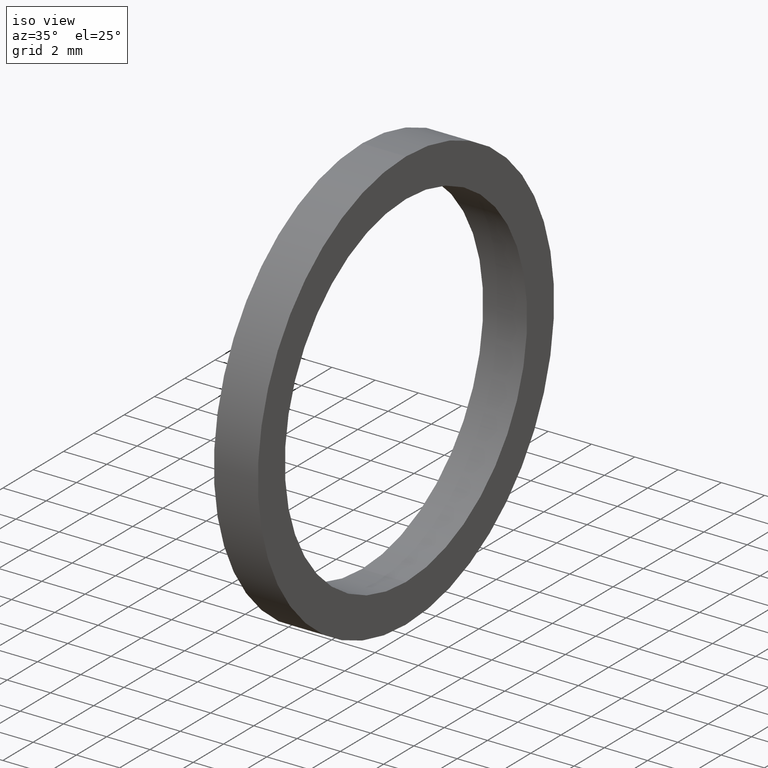
[diagram: clean part render]
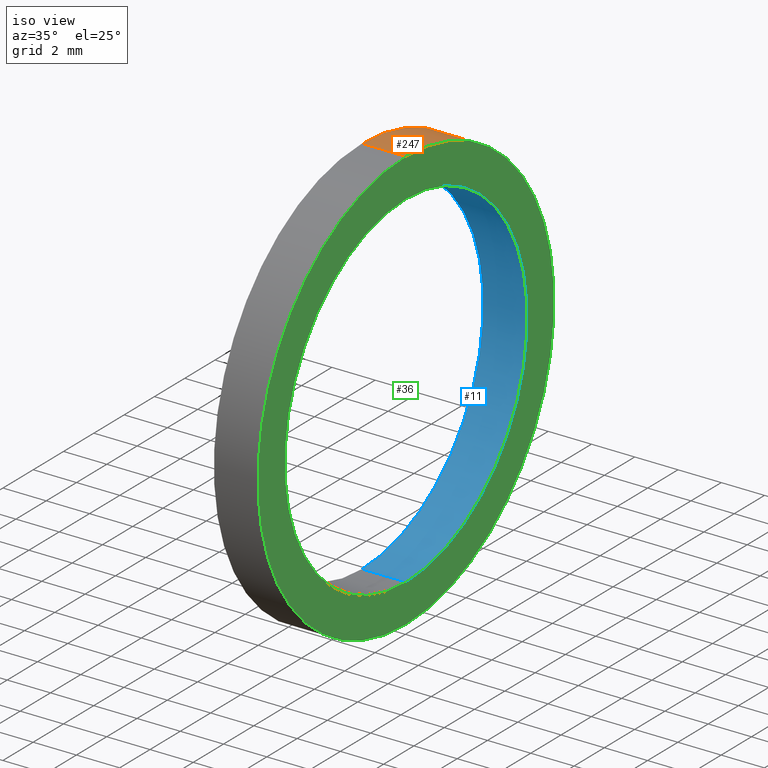
[diagram: same view with three faces highlighted in distinct colors, each labeled with its STEP entity id]
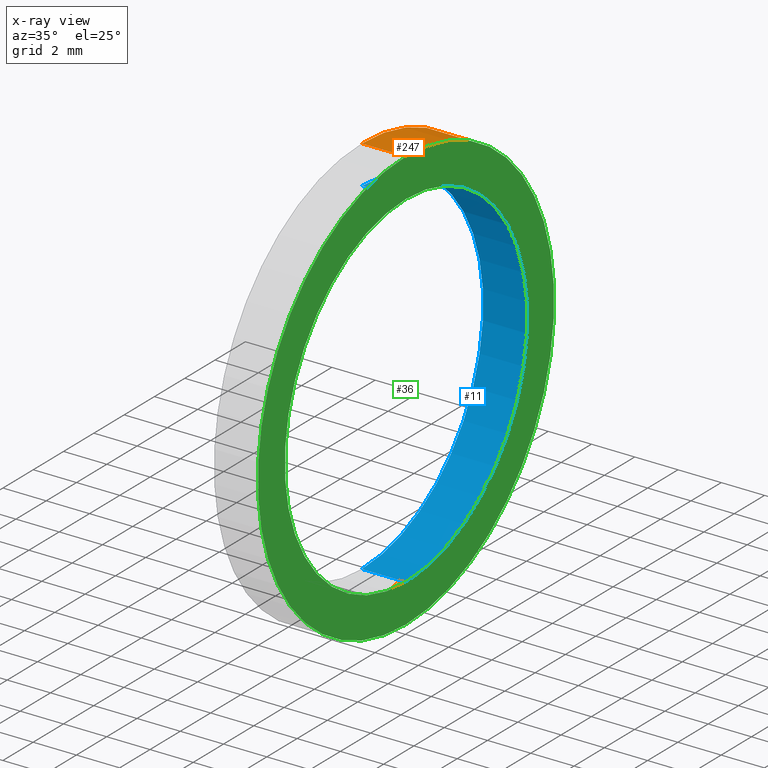
[diagram: x-ray of the same camera — body ghosted, the three highlighted faces saturated]
A machine part, iso view with three faces highlighted in distinct colors.
The next image is the same camera in x-ray (body ghosted, the three faces saturated) — at least one of them is partly hidden behind the body in this view.
Their STEP definitions:

[orange] entity #247 — the highlighted cylindrical surface (partial cylindrical patch) has radius 9.779 mm, axis along (-1, 0, 0).
#15 = EDGE_CURVE ( 'NONE', #249, #222, #57, .T. ) ;
#20 = ORIENTED_EDGE ( 'NONE', *, *, #15, .T. ) ;
#54 = DIRECTION ( 'NONE',  ( 0.0000000000000000000, 0.0000000000000000000, 1.000000000000000000 ) ) ;
#55 = DIRECTION ( 'NONE',  ( -1.000000000000000000, 0.0000000000000000000, 0.0000000000000000000 ) ) ;
#56 = AXIS2_PLACEMENT_3D ( 'NONE', #58, #55, #54 ) ;
#57 = CIRCLE ( 'NONE', #56, 0.3850000000000000100 ) ;
#58 = CARTESIAN_POINT ( 'NONE',  ( 0.07999999999999996000, 0.0000000000000000000, 0.0000000000000000000 ) ) ;
#83 = DIRECTION ( 'NONE',  ( -1.000000000000000000, 0.0000000000000000000, 0.0000000000000000000 ) ) ;
#84 = LINE ( 'NONE', #87, #85 ) ;
#85 = VECTOR ( 'NONE', #83, 39.37007874015748100 ) ;
#86 = CARTESIAN_POINT ( 'NONE',  ( 0.0000000000000000000, 4.714890176717309300E-017, -0.3850000000000000100 ) ) ;
#87 = CARTESIAN_POINT ( 'NONE',  ( -1.721125226614714300, 4.714890176717309300E-017, -0.3850000000000000100 ) ) ;
#88 = CARTESIAN_POINT ( 'NONE',  ( 0.07999999999999996000, 4.714890176717309300E-017, -0.3850000000000000100 ) ) ;
#92 = DIRECTION ( 'NONE',  ( -1.000000000000000000, 0.0000000000000000000, 0.0000000000000000000 ) ) ;
#93 = VECTOR ( 'NONE', #92, 39.37007874015748100 ) ;
#94 = CARTESIAN_POINT ( 'NONE',  ( -1.721125226614714300, 0.0000000000000000000, 0.3850000000000000100 ) ) ;
#95 = LINE ( 'NONE', #94, #93 ) ;
#96 = CIRCLE ( 'NONE', #101, 0.3850000000000000100 ) ;
#97 = DIRECTION ( 'NONE',  ( 0.0000000000000000000, 0.0000000000000000000, 1.000000000000000000 ) ) ;
#98 = DIRECTION ( 'NONE',  ( -1.000000000000000000, 0.0000000000000000000, 0.0000000000000000000 ) ) ;
#99 = CARTESIAN_POINT ( 'NONE',  ( 0.0000000000000000000, 0.0000000000000000000, 0.0000000000000000000 ) ) ;
#100 = CARTESIAN_POINT ( 'NONE',  ( 0.0000000000000000000, 0.0000000000000000000, 0.3850000000000000100 ) ) ;
#101 = AXIS2_PLACEMENT_3D ( 'NONE', #99, #98, #97 ) ;
#121 = AXIS2_PLACEMENT_3D ( 'NONE', #141, #142, #136 ) ;
#134 = FACE_OUTER_BOUND ( 'NONE', #248, .T. ) ;
#135 = CARTESIAN_POINT ( 'NONE',  ( 0.07999999999999996000, 0.0000000000000000000, 0.3850000000000000100 ) ) ;
#136 = DIRECTION ( 'NONE',  ( 0.0000000000000000000, 0.0000000000000000000, 1.000000000000000000 ) ) ;
#137 = CYLINDRICAL_SURFACE ( 'NONE', #121, 0.3850000000000000100 ) ;
#141 = CARTESIAN_POINT ( 'NONE',  ( -1.721125226614714300, 0.0000000000000000000, 0.0000000000000000000 ) ) ;
#142 = DIRECTION ( 'NONE',  ( -1.000000000000000000, 0.0000000000000000000, 0.0000000000000000000 ) ) ;
#222 = VERTEX_POINT ( 'NONE', #88 ) ;
#223 = ORIENTED_EDGE ( 'NONE', *, *, #224, .T. ) ;
#224 = EDGE_CURVE ( 'NONE', #222, #225, #84, .T. ) ;
#225 = VERTEX_POINT ( 'NONE', #86 ) ;
#226 = ORIENTED_EDGE ( 'NONE', *, *, #227, .F. ) ;
#227 = EDGE_CURVE ( 'NONE', #228, #225, #96, .T. ) ;
#228 = VERTEX_POINT ( 'NONE', #100 ) ;
#229 = ORIENTED_EDGE ( 'NONE', *, *, #230, .F. ) ;
#230 = EDGE_CURVE ( 'NONE', #249, #228, #95, .T. ) ;
#247 = ADVANCED_FACE ( 'NONE', ( #134 ), #137, .T. ) ;
#248 = EDGE_LOOP ( 'NONE', ( #20, #223, #226, #229 ) ) ;
#249 = VERTEX_POINT ( 'NONE', #135 ) ;

[blue] entity #11 — the highlighted cylindrical surface (partial cylindrical patch) has radius 8.001 mm, axis along (-1, 0, 0).
#6 = EDGE_CURVE ( 'NONE', #238, #237, #31, .T. ) ;
#11 = ADVANCED_FACE ( 'NONE', ( #45 ), #44, .F. ) ;
#17 = EDGE_CURVE ( 'NONE', #244, #241, #73, .T. ) ;
#21 = EDGE_LOOP ( 'NONE', ( #22, #23, #24, #34 ) ) ;
#22 = ORIENTED_EDGE ( 'NONE', *, *, #240, .F. ) ;
#23 = ORIENTED_EDGE ( 'NONE', *, *, #6, .F. ) ;
#24 = ORIENTED_EDGE ( 'NONE', *, *, #246, .T. ) ;
#27 = DIRECTION ( 'NONE',  ( 0.0000000000000000000, 0.0000000000000000000, 1.000000000000000000 ) ) ;
#28 = DIRECTION ( 'NONE',  ( -1.000000000000000000, 0.0000000000000000000, 0.0000000000000000000 ) ) ;
#29 = CARTESIAN_POINT ( 'NONE',  ( 0.07999999999999996000, 0.0000000000000000000, 0.0000000000000000000 ) ) ;
#30 = AXIS2_PLACEMENT_3D ( 'NONE', #29, #28, #27 ) ;
#31 = CIRCLE ( 'NONE', #30, 0.3150000000000000600 ) ;
#34 = ORIENTED_EDGE ( 'NONE', *, *, #17, .T. ) ;
#37 = CARTESIAN_POINT ( 'NONE',  ( -1.721125226614714300, 0.0000000000000000000, 0.0000000000000000000 ) ) ;
#40 = DIRECTION ( 'NONE',  ( -1.000000000000000000, 0.0000000000000000000, 0.0000000000000000000 ) ) ;
#41 = AXIS2_PLACEMENT_3D ( 'NONE', #37, #40, #43 ) ;
#43 = DIRECTION ( 'NONE',  ( 0.0000000000000000000, 0.0000000000000000000, 1.000000000000000000 ) ) ;
#44 = CYLINDRICAL_SURFACE ( 'NONE', #41, 0.3150000000000000600 ) ;
#45 = FACE_OUTER_BOUND ( 'NONE', #21, .T. ) ;
#63 = DIRECTION ( 'NONE',  ( 0.0000000000000000000, 0.0000000000000000000, 1.000000000000000000 ) ) ;
#73 = CIRCLE ( 'NONE', #74, 0.3150000000000000000 ) ;
#74 = AXIS2_PLACEMENT_3D ( 'NONE', #75, #82, #63 ) ;
#75 = CARTESIAN_POINT ( 'NONE',  ( 0.0000000000000000000, 0.0000000000000000000, 0.0000000000000000000 ) ) ;
#82 = DIRECTION ( 'NONE',  ( -1.000000000000000000, 0.0000000000000000000, 0.0000000000000000000 ) ) ;
#108 = CARTESIAN_POINT ( 'NONE',  ( 0.0000000000000000000, 3.857637417314162700E-017, -0.3150000000000000000 ) ) ;
#109 = DIRECTION ( 'NONE',  ( -1.000000000000000000, 0.0000000000000000000, 0.0000000000000000000 ) ) ;
#110 = VECTOR ( 'NONE', #109, 39.37007874015748100 ) ;
#111 = CARTESIAN_POINT ( 'NONE',  ( -1.721125226614714300, 3.857637417314163300E-017, -0.3150000000000000600 ) ) ;
#113 = LINE ( 'NONE', #111, #110 ) ;
#119 = CARTESIAN_POINT ( 'NONE',  ( 0.07999999999999996000, 3.857637417314163300E-017, -0.3150000000000000600 ) ) ;
#120 = CARTESIAN_POINT ( 'NONE',  ( 0.07999999999999996000, 0.0000000000000000000, 0.3150000000000000600 ) ) ;
#127 = LINE ( 'NONE', #129, #140 ) ;
#128 = CARTESIAN_POINT ( 'NONE',  ( 0.0000000000000000000, 0.0000000000000000000, 0.3150000000000000000 ) ) ;
#129 = CARTESIAN_POINT ( 'NONE',  ( -1.721125226614714300, 0.0000000000000000000, 0.3150000000000000600 ) ) ;
#138 = DIRECTION ( 'NONE',  ( -1.000000000000000000, 0.0000000000000000000, 0.0000000000000000000 ) ) ;
#140 = VECTOR ( 'NONE', #138, 39.37007874015748100 ) ;
#237 = VERTEX_POINT ( 'NONE', #119 ) ;
#238 = VERTEX_POINT ( 'NONE', #120 ) ;
#240 = EDGE_CURVE ( 'NONE', #237, #241, #113, .T. ) ;
#241 = VERTEX_POINT ( 'NONE', #108 ) ;
#244 = VERTEX_POINT ( 'NONE', #128 ) ;
#246 = EDGE_CURVE ( 'NONE', #238, #244, #127, .T. ) ;

[green] entity #36 — the highlighted planar face has unit normal (1, 0, 0).
#4 = EDGE_LOOP ( 'NONE', ( #5, #7 ) ) ;
#5 = ORIENTED_EDGE ( 'NONE', *, *, #6, .T. ) ;
#6 = EDGE_CURVE ( 'NONE', #238, #237, #31, .T. ) ;
#7 = ORIENTED_EDGE ( 'NONE', *, *, #236, .T. ) ;
#8 = EDGE_LOOP ( 'NONE', ( #9, #10 ) ) ;
#9 = ORIENTED_EDGE ( 'NONE', *, *, #15, .F. ) ;
#10 = ORIENTED_EDGE ( 'NONE', *, *, #12, .F. ) ;
#12 = EDGE_CURVE ( 'NONE', #222, #249, #42, .T. ) ;
#15 = EDGE_CURVE ( 'NONE', #249, #222, #57, .T. ) ;
#27 = DIRECTION ( 'NONE',  ( 0.0000000000000000000, 0.0000000000000000000, 1.000000000000000000 ) ) ;
#28 = DIRECTION ( 'NONE',  ( -1.000000000000000000, 0.0000000000000000000, 0.0000000000000000000 ) ) ;
#29 = CARTESIAN_POINT ( 'NONE',  ( 0.07999999999999996000, 0.0000000000000000000, 0.0000000000000000000 ) ) ;
#30 = AXIS2_PLACEMENT_3D ( 'NONE', #29, #28, #27 ) ;
#31 = CIRCLE ( 'NONE', #30, 0.3150000000000000600 ) ;
#32 = DIRECTION ( 'NONE',  ( 1.000000000000000000, 0.0000000000000000000, 0.0000000000000000000 ) ) ;
#36 = ADVANCED_FACE ( 'NONE', ( #77, #67 ), #66, .T. ) ;
#39 = DIRECTION ( 'NONE',  ( 0.0000000000000000000, 0.0000000000000000000, 1.000000000000000000 ) ) ;
#42 = CIRCLE ( 'NONE', #48, 0.3850000000000000100 ) ;
#46 = DIRECTION ( 'NONE',  ( -1.000000000000000000, 0.0000000000000000000, 0.0000000000000000000 ) ) ;
#47 = CARTESIAN_POINT ( 'NONE',  ( 0.07999999999999996000, 0.0000000000000000000, 0.0000000000000000000 ) ) ;
#48 = AXIS2_PLACEMENT_3D ( 'NONE', #47, #46, #39 ) ;
#49 = DIRECTION ( 'NONE',  ( 0.0000000000000000000, 0.0000000000000000000, -1.000000000000000000 ) ) ;
#54 = DIRECTION ( 'NONE',  ( 0.0000000000000000000, 0.0000000000000000000, 1.000000000000000000 ) ) ;
#55 = DIRECTION ( 'NONE',  ( -1.000000000000000000, 0.0000000000000000000, 0.0000000000000000000 ) ) ;
#56 = AXIS2_PLACEMENT_3D ( 'NONE', #58, #55, #54 ) ;
#57 = CIRCLE ( 'NONE', #56, 0.3850000000000000100 ) ;
#58 = CARTESIAN_POINT ( 'NONE',  ( 0.07999999999999996000, 0.0000000000000000000, 0.0000000000000000000 ) ) ;
#64 = CARTESIAN_POINT ( 'NONE',  ( 0.08000000000000001600, -0.3150000000000000600, 0.0000000000000000000 ) ) ;
#65 = AXIS2_PLACEMENT_3D ( 'NONE', #64, #32, #49 ) ;
#66 = PLANE ( 'NONE',  #65 ) ;
#67 = FACE_OUTER_BOUND ( 'NONE', #8, .T. ) ;
#77 = FACE_BOUND ( 'NONE', #4, .T. ) ;
#88 = CARTESIAN_POINT ( 'NONE',  ( 0.07999999999999996000, 4.714890176717309300E-017, -0.3850000000000000100 ) ) ;
#102 = CIRCLE ( 'NONE', #107, 0.3150000000000000600 ) ;
#104 = DIRECTION ( 'NONE',  ( 0.0000000000000000000, 0.0000000000000000000, 1.000000000000000000 ) ) ;
#105 = DIRECTION ( 'NONE',  ( -1.000000000000000000, 0.0000000000000000000, 0.0000000000000000000 ) ) ;
#106 = CARTESIAN_POINT ( 'NONE',  ( 0.07999999999999996000, 0.0000000000000000000, 0.0000000000000000000 ) ) ;
#107 = AXIS2_PLACEMENT_3D ( 'NONE', #106, #105, #104 ) ;
#119 = CARTESIAN_POINT ( 'NONE',  ( 0.07999999999999996000, 3.857637417314163300E-017, -0.3150000000000000600 ) ) ;
#120 = CARTESIAN_POINT ( 'NONE',  ( 0.07999999999999996000, 0.0000000000000000000, 0.3150000000000000600 ) ) ;
#135 = CARTESIAN_POINT ( 'NONE',  ( 0.07999999999999996000, 0.0000000000000000000, 0.3850000000000000100 ) ) ;
#222 = VERTEX_POINT ( 'NONE', #88 ) ;
#236 = EDGE_CURVE ( 'NONE', #237, #238, #102, .T. ) ;
#237 = VERTEX_POINT ( 'NONE', #119 ) ;
#238 = VERTEX_POINT ( 'NONE', #120 ) ;
#249 = VERTEX_POINT ( 'NONE', #135 ) ;